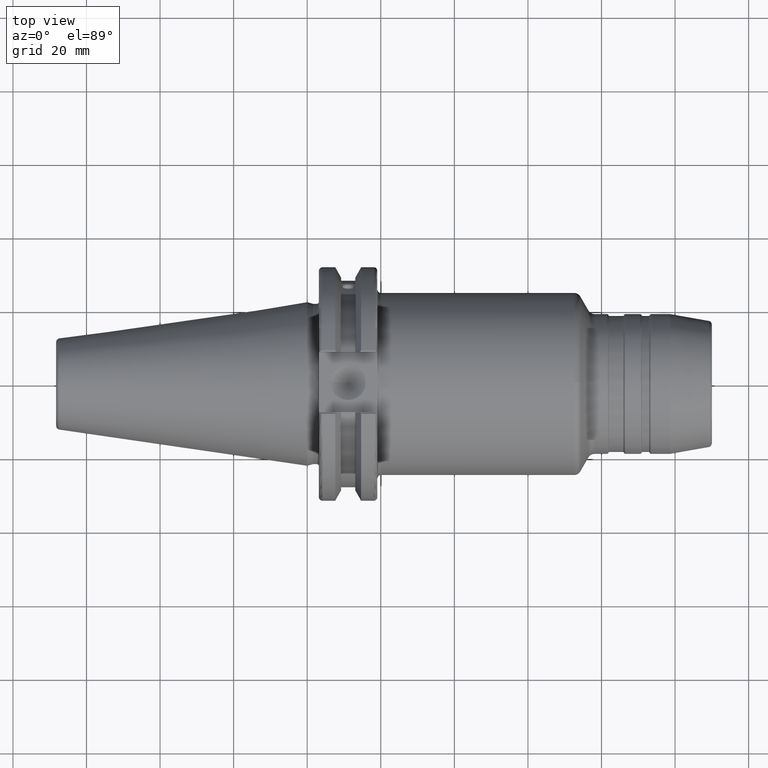
[diagram: clean part render]
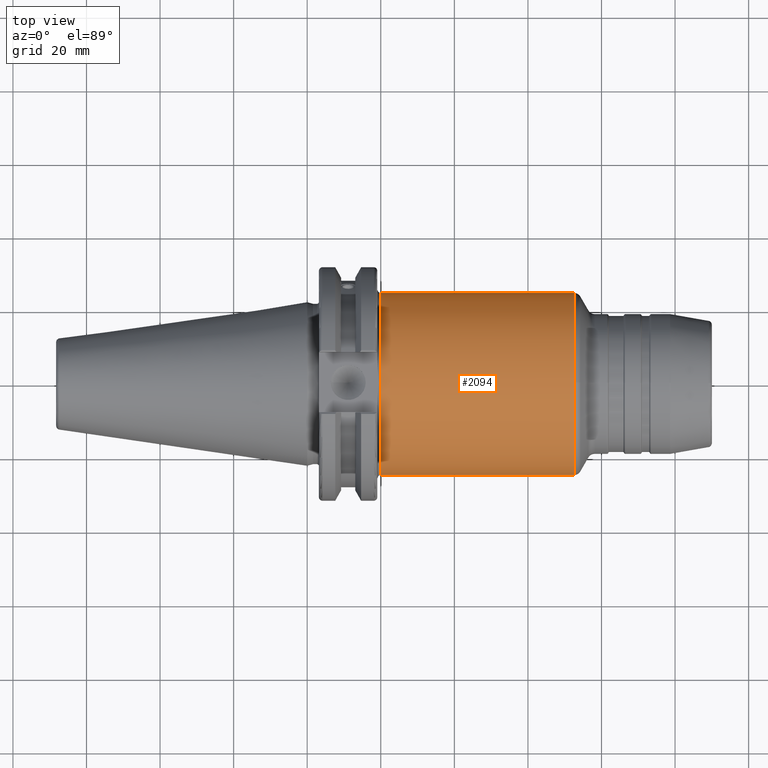
[diagram: same view with one face highlighted and labeled with its STEP entity id]
A machine part, top view. The second image highlights one B-rep face of the part: STEP entity #2094.
In plain terms, the highlighted cylindrical surface (bore or boss wall) has radius 24.75 mm, axis along (1, 0, 0).
Its self-contained STEP definition (entity closure, byte-faithful):
#142=B_SPLINE_CURVE_WITH_KNOTS('',3,(#3525,#3526,#3527,#3528,#3529,#3530,
#3531,#3532,#3533,#3534,#3535,#3536,#3537,#3538,#3539,#3540,#3541,#3542),
 .UNSPECIFIED.,.F.,.F.,(4,2,2,2,2,2,2,2,4),(-2.48845986202559,-2.17733241913027,
-1.86620497623495,-1.55521745362387,-1.24422993101279,-0.933242408401714,
-0.622254885790634,-0.311127442895317,0.),.UNSPECIFIED.);
#195=FACE_OUTER_BOUND('',#304,.T.);
#304=EDGE_LOOP('',(#1545,#1546,#1547,#1548,#1549,#1550,#1551,#1552));
#412=LINE('',#3524,#506);
#506=VECTOR('',#2746,24.75);
#666=CIRCLE('',#2301,24.75);
#667=CIRCLE('',#2302,24.75);
#670=CIRCLE('',#2307,24.75);
#671=CIRCLE('',#2308,24.75);
#672=CIRCLE('',#2309,24.75);
#842=VERTEX_POINT('',#3483);
#843=VERTEX_POINT('',#3494);
#844=VERTEX_POINT('',#3496);
#849=VERTEX_POINT('',#3519);
#850=VERTEX_POINT('',#3520);
#851=VERTEX_POINT('',#3522);
#1108=EDGE_CURVE('',#842,#843,#666,.T.);
#1109=EDGE_CURVE('',#843,#844,#667,.T.);
#1116=EDGE_CURVE('',#849,#850,#670,.T.);
#1117=EDGE_CURVE('',#851,#849,#671,.T.);
#1118=EDGE_CURVE('',#851,#843,#412,.T.);
#1119=EDGE_CURVE('',#842,#844,#142,.T.);
#1120=EDGE_CURVE('',#850,#851,#672,.T.);
#1545=ORIENTED_EDGE('',*,*,#1116,.F.);
#1546=ORIENTED_EDGE('',*,*,#1117,.F.);
#1547=ORIENTED_EDGE('',*,*,#1118,.T.);
#1548=ORIENTED_EDGE('',*,*,#1108,.F.);
#1549=ORIENTED_EDGE('',*,*,#1119,.T.);
#1550=ORIENTED_EDGE('',*,*,#1109,.F.);
#1551=ORIENTED_EDGE('',*,*,#1118,.F.);
#1552=ORIENTED_EDGE('',*,*,#1120,.F.);
#2040=CYLINDRICAL_SURFACE('',#2306,24.75);
#2094=ADVANCED_FACE('',(#195),#2040,.T.);
#2301=AXIS2_PLACEMENT_3D('',#3495,#2727,#2728);
#2302=AXIS2_PLACEMENT_3D('',#3497,#2729,#2730);
#2306=AXIS2_PLACEMENT_3D('',#3518,#2740,#2741);
#2307=AXIS2_PLACEMENT_3D('',#3521,#2742,#2743);
#2308=AXIS2_PLACEMENT_3D('',#3523,#2744,#2745);
#2309=AXIS2_PLACEMENT_3D('',#3543,#2747,#2748);
#2727=DIRECTION('center_axis',(-1.,0.,0.));
#2728=DIRECTION('ref_axis',(0.,6.12323399573677E-17,1.));
#2729=DIRECTION('center_axis',(-1.,0.,0.));
#2730=DIRECTION('ref_axis',(0.,6.12323399573677E-17,1.));
#2740=DIRECTION('center_axis',(1.,0.,0.));
#2741=DIRECTION('ref_axis',(0.,1.,0.));
#2742=DIRECTION('center_axis',(1.,0.,0.));
#2743=DIRECTION('ref_axis',(0.,-1.,1.83697019872103E-16));
#2744=DIRECTION('center_axis',(1.,0.,0.));
#2745=DIRECTION('ref_axis',(0.,-1.,1.83697019872103E-16));
#2746=DIRECTION('',(-1.,0.,0.));
#2747=DIRECTION('center_axis',(1.,0.,0.));
#2748=DIRECTION('ref_axis',(0.,-1.,1.83697019872103E-16));
#3483=CARTESIAN_POINT('',(20.05,-8.19,-23.3556502799644));
#3494=CARTESIAN_POINT('',(20.05,-24.75,-3.0310008278897E-15));
#3495=CARTESIAN_POINT('Origin',(20.05,0.,0.));
#3496=CARTESIAN_POINT('',(20.05,8.19,-23.3556502799644));
#3497=CARTESIAN_POINT('Origin',(20.05,0.,0.));
#3518=CARTESIAN_POINT('Origin',(46.3651179760798,0.,0.));
#3519=CARTESIAN_POINT('',(72.5255354137804,24.75,-1.51550041394485E-15));
#3520=CARTESIAN_POINT('',(72.5255354137804,-3.0310008278897E-15,24.75));
#3521=CARTESIAN_POINT('Origin',(72.5255354137804,0.,0.));
#3522=CARTESIAN_POINT('',(72.5255354137804,-24.75,-3.0310008278897E-15));
#3523=CARTESIAN_POINT('Origin',(72.5255354137804,0.,0.));
#3524=CARTESIAN_POINT('',(46.3651179760798,-24.75,-3.0310008278897E-15));
#3525=CARTESIAN_POINT('Ctrl Pts',(20.05,-8.19,-23.3556502799644));
#3526=CARTESIAN_POINT('Ctrl Pts',(21.0870914763177,-8.19,-23.3556502799644));
#3527=CARTESIAN_POINT('Ctrl Pts',(22.1874172494719,-7.98112852617488,-23.4319820145953));
#3528=CARTESIAN_POINT('Ctrl Pts',(24.2026226557734,-7.14301766428652,-23.7009173446597));
#3529=CARTESIAN_POINT('Ctrl Pts',(25.1182638848105,-6.51414519102516,-23.8889373554493));
#3530=CARTESIAN_POINT('Ctrl Pts',(26.563820070037,-5.06858900579863,-24.2368381566145));
#3531=CARTESIAN_POINT('Ctrl Pts',(27.1929429534371,-4.15281808103607,-24.420258379043));
#3532=CARTESIAN_POINT('Ctrl Pts',(28.0312404144778,-2.13713243178098,-24.6784841969774));
#3533=CARTESIAN_POINT('Ctrl Pts',(28.24,-1.03662507537027,-24.75));
#3534=CARTESIAN_POINT('Ctrl Pts',(28.24,1.03662507537026,-24.75));
#3535=CARTESIAN_POINT('Ctrl Pts',(28.0312404144778,2.13713243178097,-24.6784841969774));
#3536=CARTESIAN_POINT('Ctrl Pts',(27.1929429534371,4.15281808103606,-24.420258379043));
#3537=CARTESIAN_POINT('Ctrl Pts',(26.563820070037,5.06858900579863,-24.2368381566145));
#3538=CARTESIAN_POINT('Ctrl Pts',(25.1182638848105,6.51414519102515,-23.8889373554493));
#3539=CARTESIAN_POINT('Ctrl Pts',(24.2026226557734,7.14301766428651,-23.7009173446597));
#3540=CARTESIAN_POINT('Ctrl Pts',(22.1874172494719,7.98112852617488,-23.4319820145953));
#3541=CARTESIAN_POINT('Ctrl Pts',(21.0870914763177,8.19,-23.3556502799644));
#3542=CARTESIAN_POINT('Ctrl Pts',(20.05,8.19,-23.3556502799644));
#3543=CARTESIAN_POINT('Origin',(72.5255354137804,0.,0.));